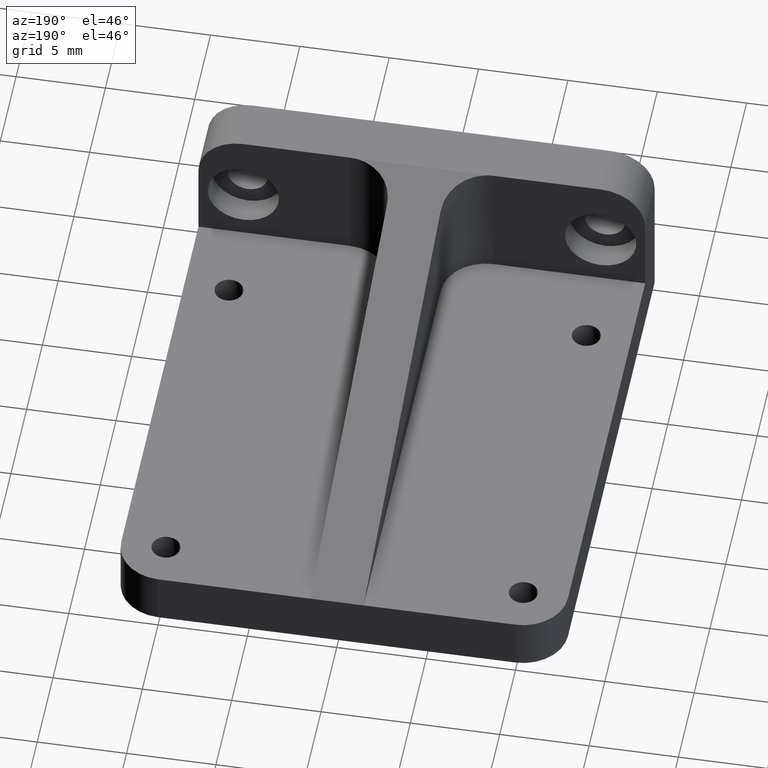
[diagram: clean part render]
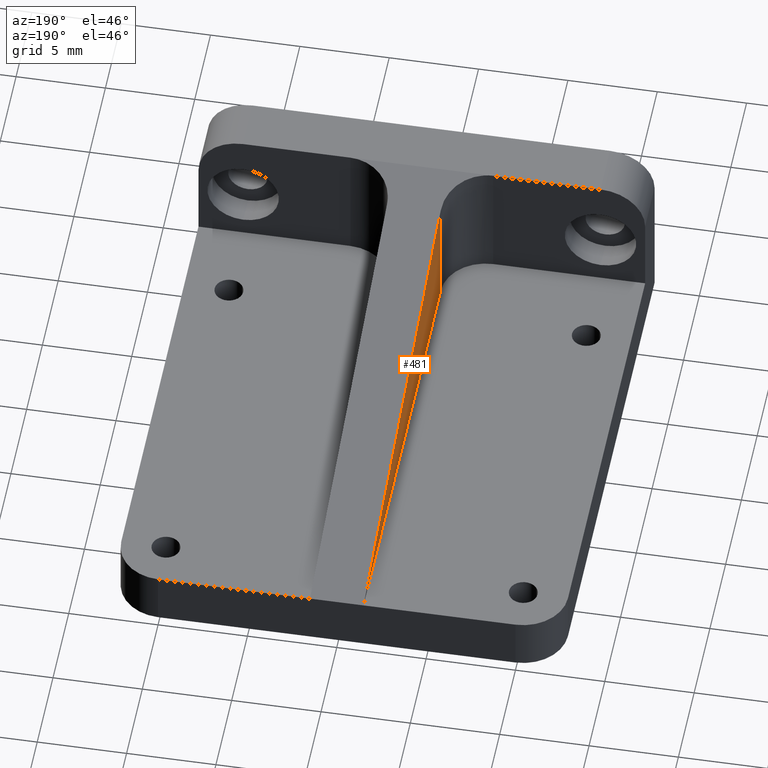
[diagram: same view with one face highlighted and labeled with its STEP entity id]
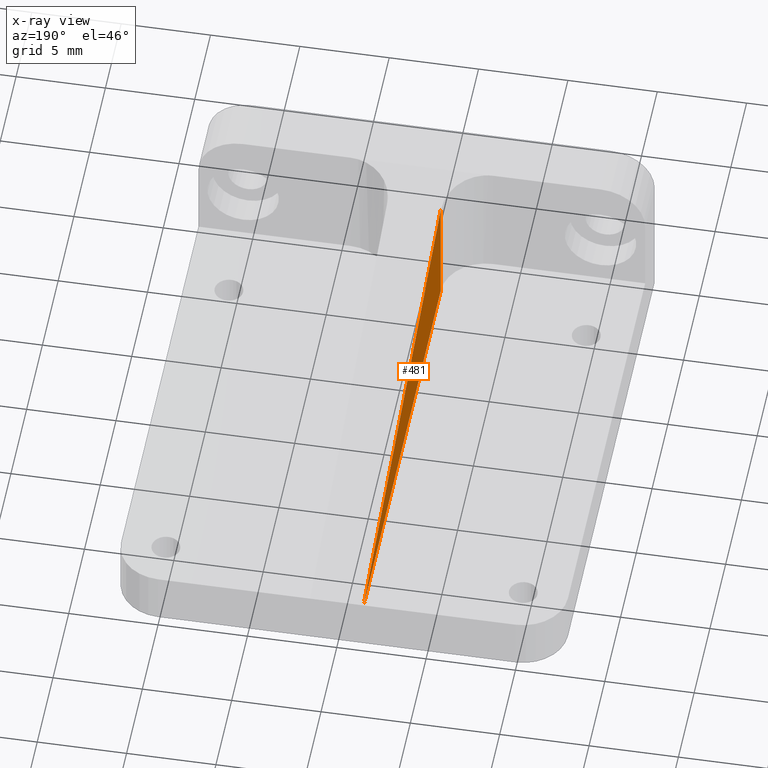
[diagram: x-ray of the same camera — body ghosted, the highlighted face saturated]
A machine part, auxiliary view. The second image highlights one B-rep face of the part: STEP entity #481.
The next image is the same camera in x-ray: the body ghosted, the highlighted face saturated — about 0% of this face is hidden behind the body in this view.
In plain terms, the highlighted planar face has unit normal (1, 0, 0).
Its self-contained STEP definition (entity closure, byte-faithful):
#7 = FACE_OUTER_BOUND ( 'NONE', #325, .T. ) ;
#26 = VECTOR ( 'NONE', #143, 1000.000000000000000 ) ;
#36 = VECTOR ( 'NONE', #250, 1000.000000000000000 ) ;
#96 = DIRECTION ( 'NONE',  ( -2.569960705150825398E-16, 1.000000000000000000, 0.0000000000000000000 ) ) ;
#132 = EDGE_CURVE ( 'NONE', #245, #944, #157, .T. ) ;
#143 = DIRECTION ( 'NONE',  ( 2.569960705150825398E-16, -1.000000000000000000, 0.0000000000000000000 ) ) ;
#157 = LINE ( 'NONE', #163, #26 ) ;
#163 = CARTESIAN_POINT ( 'NONE',  ( -1.499999999999997780, 3.000000000000000000, 3.000000000000002665 ) ) ;
#220 = CARTESIAN_POINT ( 'NONE',  ( -1.500000000000004885, 29.99999999999999645, 3.000000000000000888 ) ) ;
#244 = CARTESIAN_POINT ( 'NONE',  ( -1.500000000000004885, 30.00000000000000000, 3.000000000000002665 ) ) ;
#245 = VERTEX_POINT ( 'NONE', #244 ) ;
#250 = DIRECTION ( 'NONE',  ( -0.0000000000000000000, 0.0000000000000000000, 1.000000000000000000 ) ) ;
#263 = AXIS2_PLACEMENT_3D ( 'NONE', #579, #847, #96 ) ;
#310 = ORIENTED_EDGE ( 'NONE', *, *, #1237, .T. ) ;
#317 = EDGE_CURVE ( 'NONE', #245, #544, #882, .T. ) ;
#325 = EDGE_LOOP ( 'NONE', ( #1177, #310, #1136 ) ) ;
#481 = ADVANCED_FACE ( 'NONE', ( #7 ), #767, .F. ) ;
#544 = VERTEX_POINT ( 'NONE', #867 ) ;
#579 = CARTESIAN_POINT ( 'NONE',  ( -1.499999999999997780, 3.000000000000000000, -29.15475947422650904 ) ) ;
#598 = VECTOR ( 'NONE', #606, 999.9999999999998863 ) ;
#606 = DIRECTION ( 'NONE',  ( 2.487713990993993061E-16, -0.9679968981658009231, 0.2509621587837261303 ) ) ;
#761 = CARTESIAN_POINT ( 'NONE',  ( -1.499999999999998446, 5.500000000000000888, 3.000000000000002665 ) ) ;
#767 = PLANE ( 'NONE',  #263 ) ;
#847 = DIRECTION ( 'NONE',  ( 1.000000000000000000, 2.569960705150825398E-16, 0.0000000000000000000 ) ) ;
#867 = CARTESIAN_POINT ( 'NONE',  ( -1.499999999999998446, 5.499999999999991118, 9.351851851851854747 ) ) ;
#882 = LINE ( 'NONE', #220, #598 ) ;
#944 = VERTEX_POINT ( 'NONE', #761 ) ;
#985 = LINE ( 'NONE', #1090, #36 ) ;
#1090 = CARTESIAN_POINT ( 'NONE',  ( -1.499999999999998224, 5.500000000000000888, 10.00000000000000178 ) ) ;
#1136 = ORIENTED_EDGE ( 'NONE', *, *, #317, .F. ) ;
#1177 = ORIENTED_EDGE ( 'NONE', *, *, #132, .T. ) ;
#1237 = EDGE_CURVE ( 'NONE', #944, #544, #985, .T. ) ;